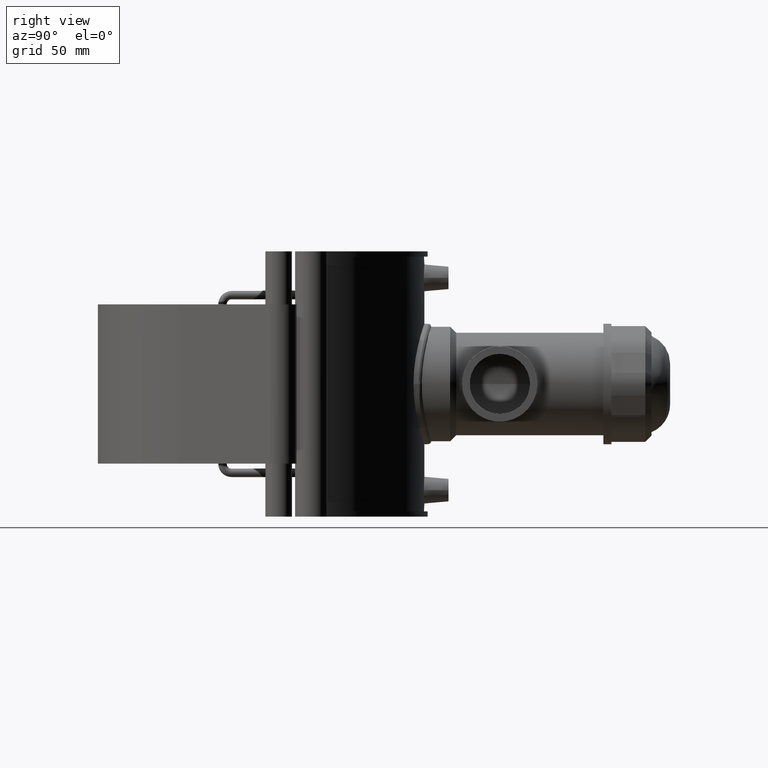
[diagram: clean part render]
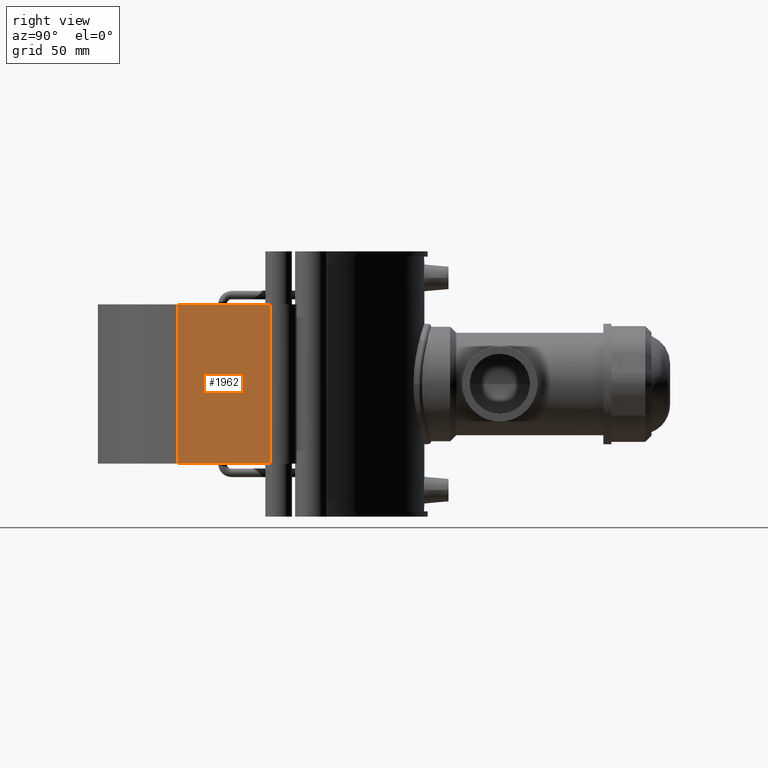
[diagram: same view with one face highlighted and labeled with its STEP entity id]
A machine part, right view. The second image highlights one B-rep face of the part: STEP entity #1962.
In plain terms, the highlighted planar face has unit normal (0.8763, -0.4818, 0).
Its self-contained STEP definition (entity closure, byte-faithful):
#102=LINE('',#3348,#263);
#111=LINE('',#3384,#272);
#189=LINE('',#3612,#350);
#190=LINE('',#3613,#351);
#263=VECTOR('',#2445,69.8614012500134);
#272=VECTOR('',#2474,69.8614012500134);
#350=VECTOR('',#2686,105.6);
#351=VECTOR('',#2687,105.6);
#541=FACE_OUTER_BOUND('',#683,.T.);
#683=EDGE_LOOP('',(#1695,#1696,#1697,#1698));
#890=VERTEX_POINT('',#3345);
#891=VERTEX_POINT('',#3347);
#907=VERTEX_POINT('',#3381);
#908=VERTEX_POINT('',#3383);
#1104=EDGE_CURVE('',#890,#891,#102,.T.);
#1122=EDGE_CURVE('',#907,#908,#111,.T.);
#1231=EDGE_CURVE('',#890,#908,#189,.T.);
#1232=EDGE_CURVE('',#891,#907,#190,.T.);
#1695=ORIENTED_EDGE('',*,*,#1231,.T.);
#1696=ORIENTED_EDGE('',*,*,#1122,.F.);
#1697=ORIENTED_EDGE('',*,*,#1232,.F.);
#1698=ORIENTED_EDGE('',*,*,#1104,.F.);
#1859=PLANE('',#2158);
#1962=ADVANCED_FACE('',(#541),#1859,.T.);
#2158=AXIS2_PLACEMENT_3D('',#3611,#2684,#2685);
#2445=DIRECTION('',(-0.48178356484113,-0.876290246806943,0.));
#2474=DIRECTION('',(0.48178356484113,0.876290246806943,0.));
#2684=DIRECTION('center_axis',(0.876290246806943,-0.48178356484113,0.));
#2685=DIRECTION('ref_axis',(0.48178356484113,0.876290246806943,0.));
#2686=DIRECTION('',(0.,0.,1.));
#2687=DIRECTION('',(0.,0.,1.));
#3345=CARTESIAN_POINT('',(123.915970360143,11.5951573650167,-52.8));
#3347=CARTESIAN_POINT('',(90.2578954211151,-49.6237071786365,-52.8));
#3348=CARTESIAN_POINT('',(90.2578954211151,-49.6237071786365,-52.8));
#3381=CARTESIAN_POINT('',(90.2578954211151,-49.6237071786365,52.8));
#3383=CARTESIAN_POINT('',(123.915970360143,11.5951573650167,52.8));
#3384=CARTESIAN_POINT('',(90.2578954211151,-49.6237071786365,52.8));
#3611=CARTESIAN_POINT('Origin',(90.2578954211151,-49.6237071786365,0.));
#3612=CARTESIAN_POINT('',(123.915970360143,11.5951573650167,0.));
#3613=CARTESIAN_POINT('',(90.2578954211151,-49.6237071786365,0.));